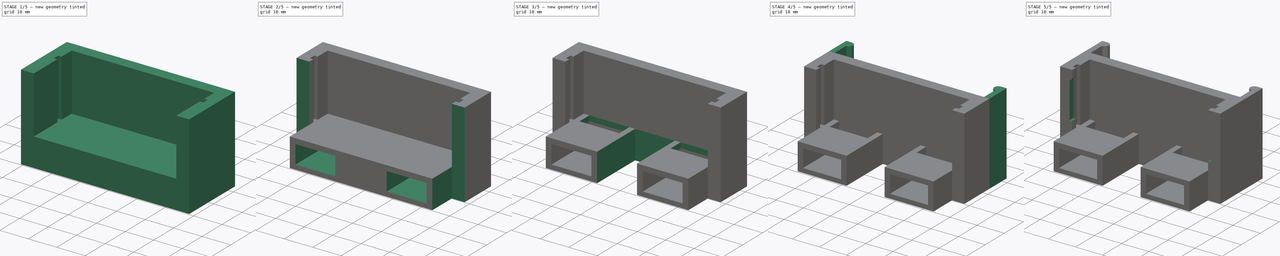
[diagram: build sequence overview — one tinted view per stage of 5, left to right]
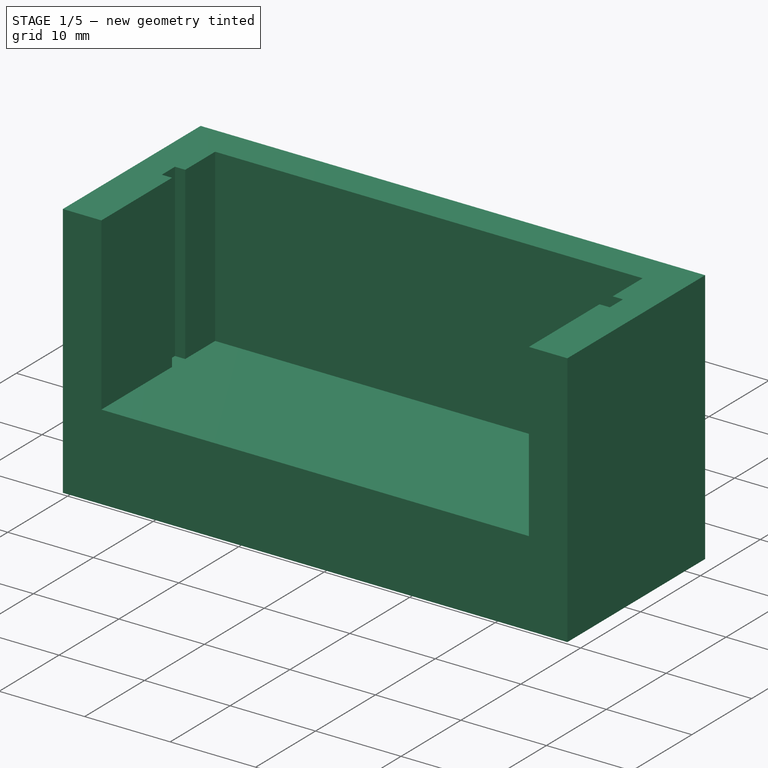
[diagram: stage 1 of 5 — iso view after this stage's code; geometry added in this stage tinted green]
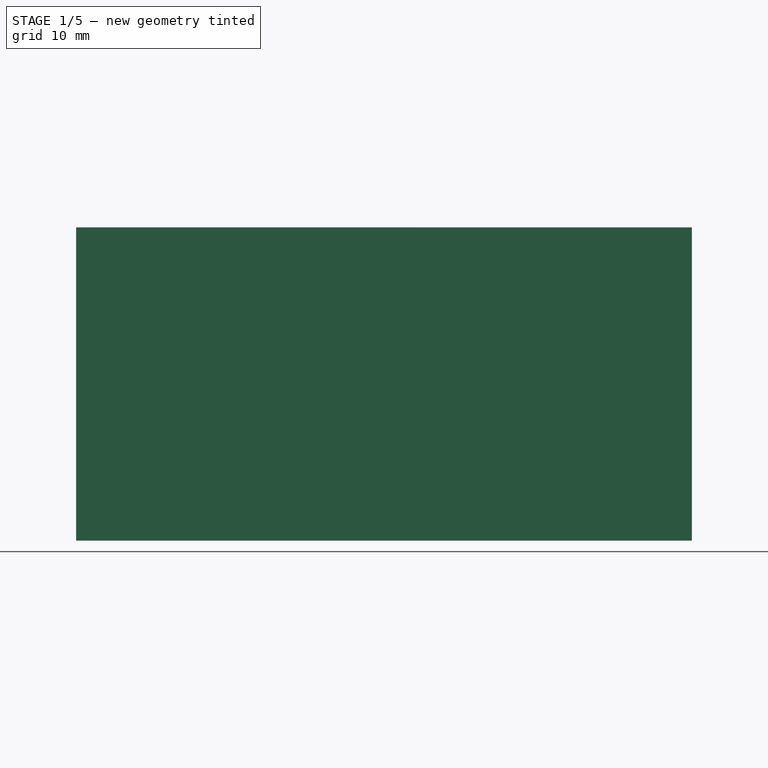
[diagram: stage 1 of 5 — front view after this stage's code; geometry added in this stage tinted green]
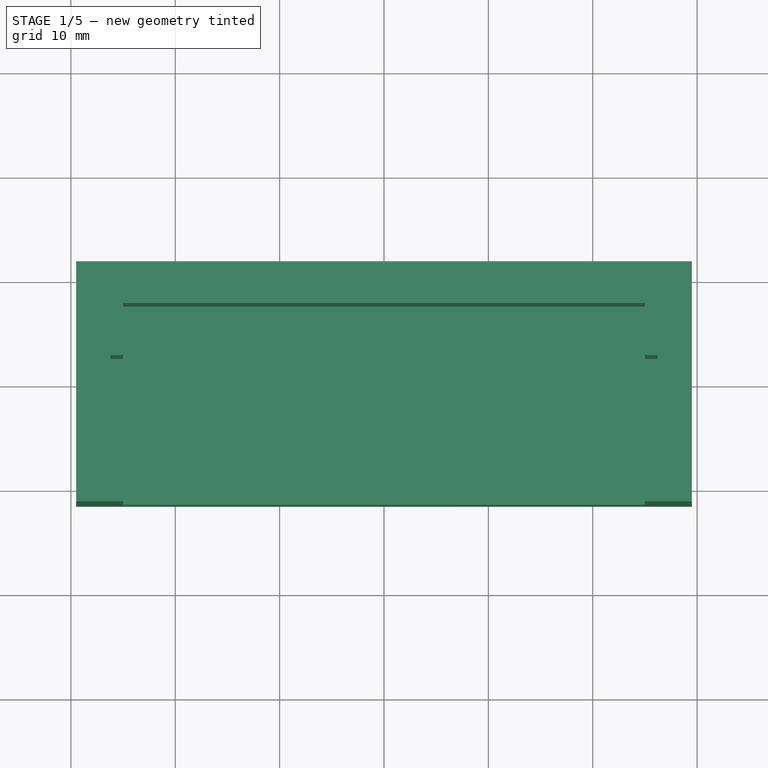
[diagram: stage 1 of 5 — top view after this stage's code; geometry added in this stage tinted green]
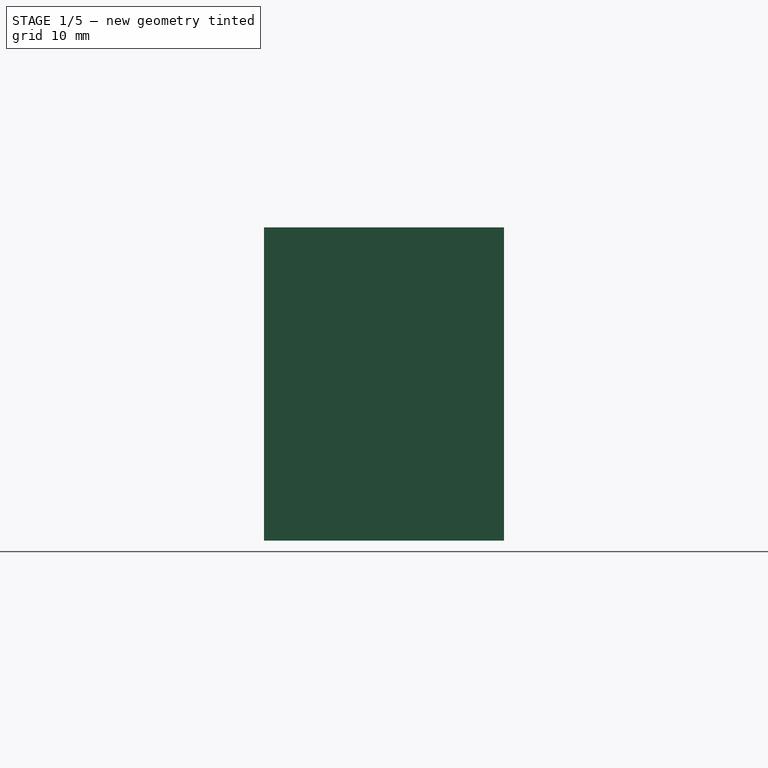
[diagram: stage 1 of 5 — right view after this stage's code; geometry added in this stage tinted green]
FCSTD DOCUMENT  (FreeCAD 0.14R3702 (Git))
Label: test
License: CC-BY 3.0
LicenseURL: http://creativecommons.org/licenses/by/3.0/
objects: Sketcher::SketchObject×10, PartDesign::Pocket×7, PartDesign::Mirrored×7, PartDesign::Pad×3, PartDesign::Draft×2, Part::Feature×1
note: 40 computed .brp shape members not serialized (recipe doc carries the construction recipe); baked Part::Feature solids carry a one-line shape summary decoded from their .brp

FEATURE [Sketcher::SketchObject] Sketch
  sketch-geometry (4):
    g0: LineSegment StartX=-29.5 StartY=11.5 StartZ=0 EndX=29.5 EndY=11.5 EndZ=0
    g1: LineSegment StartX=29.5 StartY=11.5 StartZ=0 EndX=29.5 EndY=-11.5 EndZ=0
    g2: LineSegment StartX=29.5 StartY=-11.5 StartZ=0 EndX=-29.5 EndY=-11.5 EndZ=0
    g3: LineSegment StartX=-29.5 StartY=-11.5 StartZ=0 EndX=-29.5 EndY=11.5 EndZ=0
  constraints (12):
    c: Coincident(g0,g1)
    c: Coincident(g1,g2)
    c: Coincident(g2,g3)
    c: Coincident(g3,g0)
    c: Horizontal(g0)
    c: Horizontal(g2)
    c: Vertical(g1)
    c: Vertical(g3)
    c: DistanceY(g1) = -23
    c: DistanceX(g0) = 59
    c: Symmetric(g0,g0,g-2)
    c: Symmetric(g0,g1,g-1)
FEATURE [PartDesign::Pad] Pad
  Length = 30
  Length2 = 26.5
  Sketch = -> Sketch
  Type = 0
FEATURE [Sketcher::SketchObject] Sketch001
  ExternalGeometry = -> [Pad]
  Placement = pos=(0,0,30) rot=(0,0,1;0rad)
  Support = -> Pad [Face6]
  sketch-geometry (4):
    g0: LineSegment StartX=-25 StartY=7.5 StartZ=0 EndX=25 EndY=7.5 EndZ=0
    g1: LineSegment StartX=25 StartY=7.5 StartZ=0 EndX=25 EndY=-11.5 EndZ=0
    g2: LineSegment StartX=25 StartY=-11.5 StartZ=0 EndX=-25 EndY=-11.5 EndZ=0
    g3: LineSegment StartX=-25 StartY=-11.5 StartZ=0 EndX=-25 EndY=7.5 EndZ=0
  constraints (12):
    c: Coincident(g0,g1)
    c: Coincident(g1,g2)
    c: Coincident(g2,g3)
    c: Coincident(g3,g0)
    c: Horizontal(g0)
    c: Horizontal(g2)
    c: Vertical(g1)
    c: Vertical(g3)
    c: DistanceY(g0,g-3) = 4
    c: DistanceY(g-4,g1) = 0
    c: Symmetric(g1,g2,g-2)
    c: DistanceX(g0) = 50
FEATURE [PartDesign::Pocket] Pocket
  Length = 20
  Sketch = -> Sketch001
  Type = 0
FEATURE [Sketcher::SketchObject] Sketch002
  Placement = pos=(0,0,30) rot=(0,0,1;0rad)
  Support = -> Pocket [Face5]
  sketch-geometry (4):
    g0: LineSegment StartX=25 StartY=2.5 StartZ=0 EndX=26.2 EndY=2.5 EndZ=0
    g1: LineSegment StartX=26.2 StartY=2.5 StartZ=0 EndX=26.2 EndY=0.3 EndZ=0
    g2: LineSegment StartX=26.2 StartY=0.3 StartZ=0 EndX=25 EndY=0.3 EndZ=0
    g3: LineSegment StartX=25 StartY=0.3 StartZ=0 EndX=25 EndY=2.5 EndZ=0
  constraints (10):
    c: Coincident(g0,g1)
    c: Coincident(g1,g2)
    c: Coincident(g2,g3)
    c: Coincident(g3,g0)
    c: Horizontal(g0)
    c: Horizontal(g2)
    c: Vertical(g1)
    c: Vertical(g3)
    c: DistanceX(g0) = 1.2
    c: DistanceY(g1) = -2.2
FEATURE [PartDesign::Pocket] Pocket001
  Length = 20
  Sketch = -> Sketch002
  Type = 0
FEATURE [PartDesign::Mirrored] Mirrored
  MirrorPlane = -> Sketch002 [V_Axis]
  Originals = -> [Pocket001]
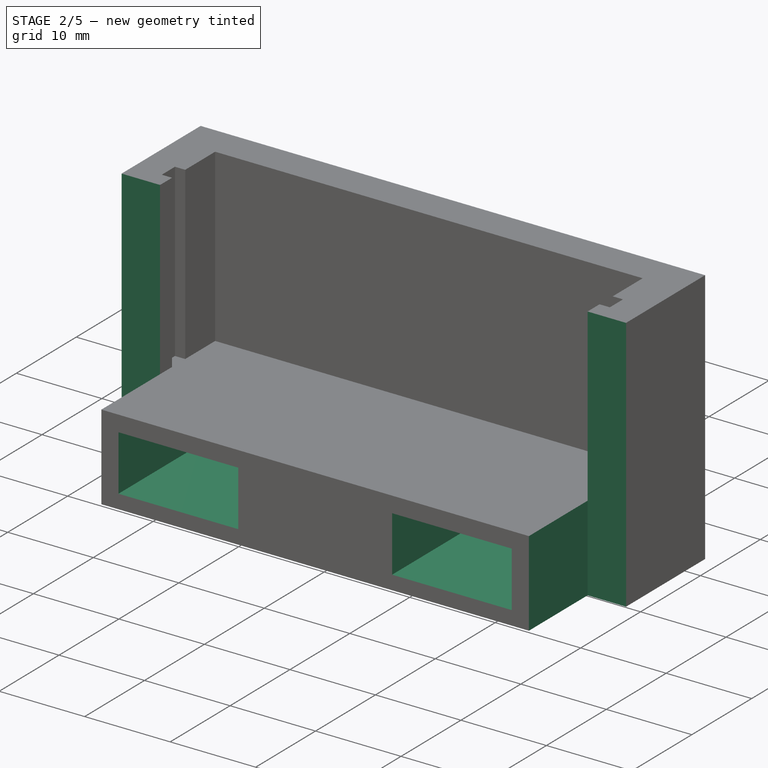
[diagram: stage 2 of 5 — iso view after this stage's code; geometry added in this stage tinted green]
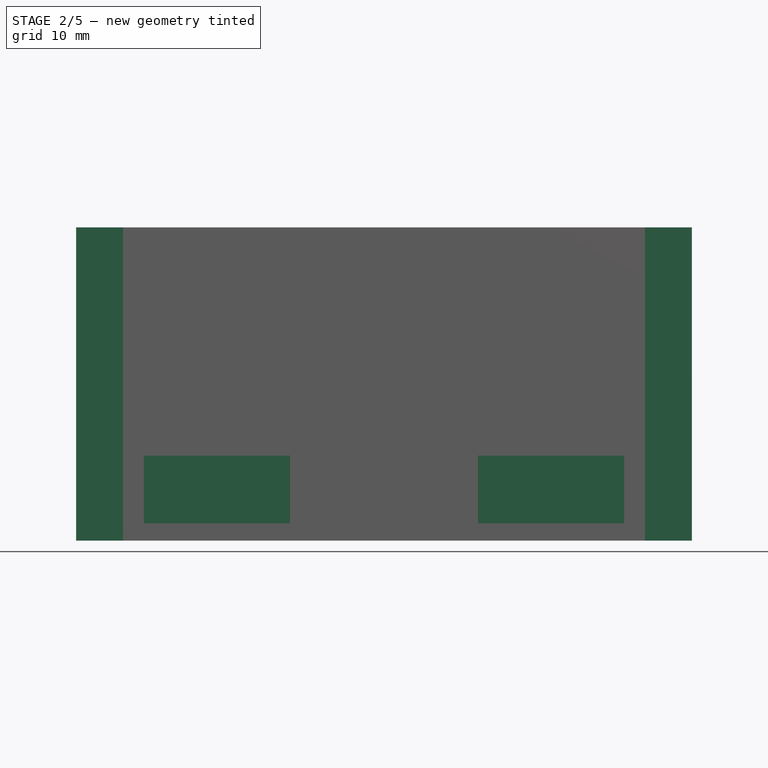
[diagram: stage 2 of 5 — front view after this stage's code; geometry added in this stage tinted green]
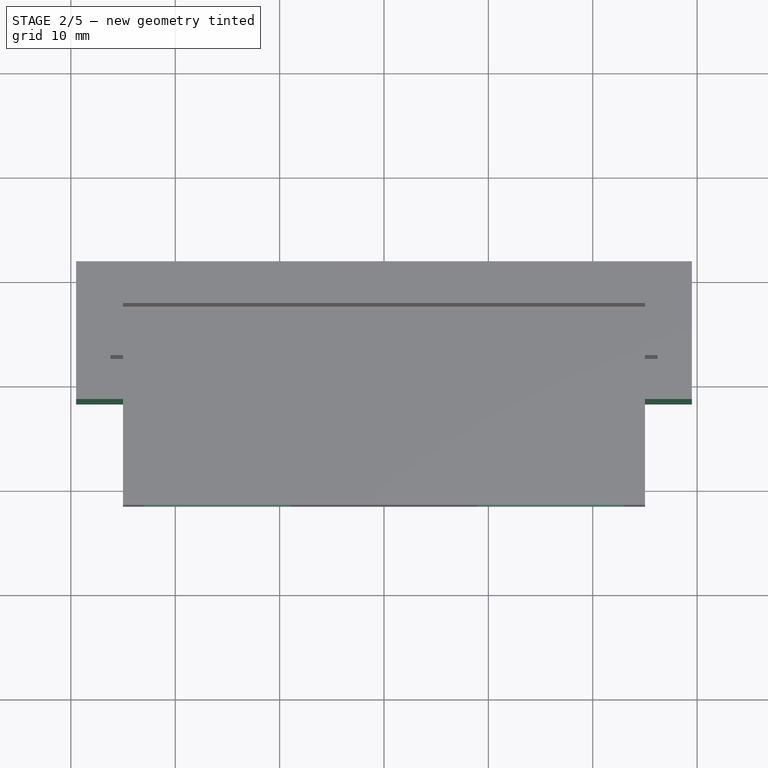
[diagram: stage 2 of 5 — top view after this stage's code; geometry added in this stage tinted green]
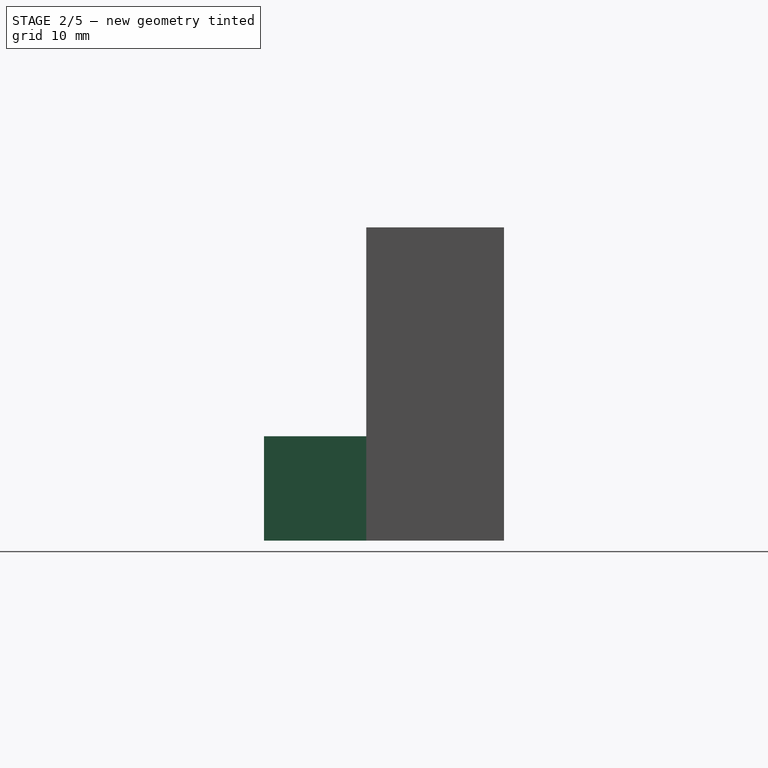
[diagram: stage 2 of 5 — right view after this stage's code; geometry added in this stage tinted green]
FEATURE [Sketcher::SketchObject] Sketch003
  ExternalGeometry = -> [Mirrored]
  Placement = pos=(0,0,30) rot=(0,0,1;0rad)
  Support = -> Mirrored [Face5]
  sketch-geometry (4):
    g0: LineSegment StartX=25 StartY=-1.7 StartZ=0 EndX=29.5 EndY=-1.7 EndZ=0
    g1: LineSegment StartX=29.5 StartY=-1.7 StartZ=0 EndX=29.5 EndY=-11.5 EndZ=0
    g2: LineSegment StartX=29.5 StartY=-11.5 StartZ=0 EndX=25 EndY=-11.5 EndZ=0
    g3: LineSegment StartX=25 StartY=-11.5 StartZ=0 EndX=25 EndY=-1.7 EndZ=0
  constraints (11):
    c: Coincident(g0,g1)
    c: Coincident(g1,g2)
    c: Coincident(g2,g3)
    c: Coincident(g3,g0)
    c: Horizontal(g0)
    c: Horizontal(g2)
    c: Vertical(g1)
    c: Vertical(g3)
    c: Coincident(g-3,g1)
    c: Coincident(g2,g-4)
    c: DistanceY(g-5,g0) = -2
FEATURE [PartDesign::Pocket] Pocket002
  Length = 5
  Sketch = -> Sketch003
  Type = 2
FEATURE [PartDesign::Mirrored] Mirrored001
  MirrorPlane = -> Sketch003 [V_Axis]
  Originals = -> [Pocket002]
FEATURE [Sketcher::SketchObject] Sketch004
  ExternalGeometry = -> [Mirrored001]
  Placement = pos=(0,-11.5,0) rot=(1,0,0;1.5708rad)
  Support = -> Mirrored001 [Face9]
  sketch-geometry (4):
    g0: LineSegment StartX=9 StartY=8.14247 StartZ=0 EndX=23 EndY=8.14247 EndZ=0
    g1: LineSegment StartX=23 StartY=8.14247 StartZ=0 EndX=23 EndY=1.64247 EndZ=0
    g2: LineSegment StartX=23 StartY=1.64247 StartZ=0 EndX=9 EndY=1.64247 EndZ=0
    g3: LineSegment StartX=9 StartY=1.64247 StartZ=0 EndX=9 EndY=8.14247 EndZ=0
  constraints (11):
    c: Coincident(g0,g1)
    c: Coincident(g1,g2)
    c: Coincident(g2,g3)
    c: Coincident(g3,g0)
    c: Horizontal(g0)
    c: Horizontal(g2)
    c: Vertical(g1)
    c: Vertical(g3)
    c: DistanceX(g0) = 14
    c: DistanceY(g1) = -6.5
    c: DistanceX(g1,g-3) = 2
FEATURE [PartDesign::Pocket] Pocket003
  Length = 19
  Sketch = -> Sketch004
  Type = 0
FEATURE [PartDesign::Mirrored] Mirrored002
  MirrorPlane = -> Sketch004 [V_Axis]
  Originals = -> [Pocket003]
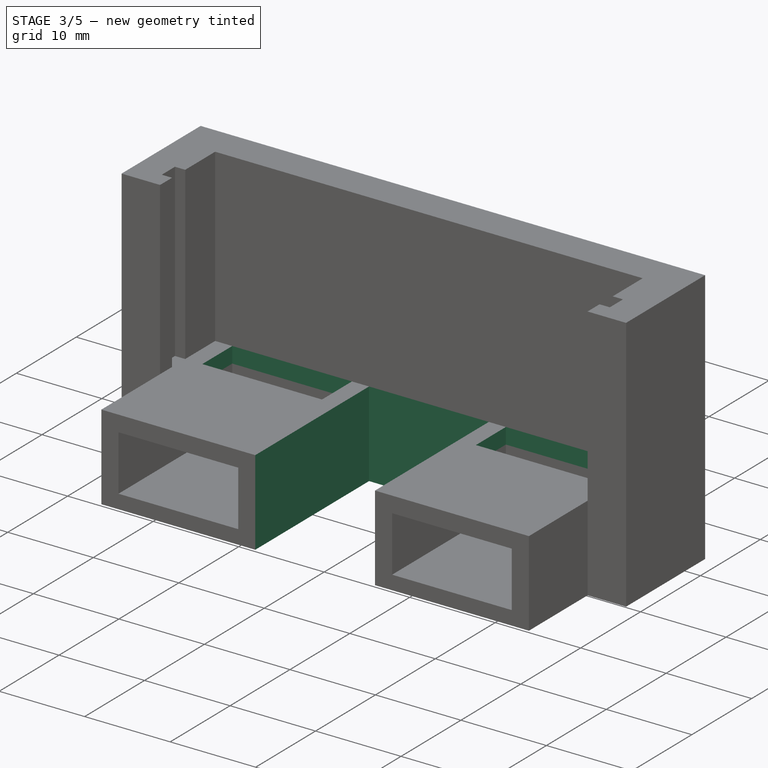
[diagram: stage 3 of 5 — iso view after this stage's code; geometry added in this stage tinted green]
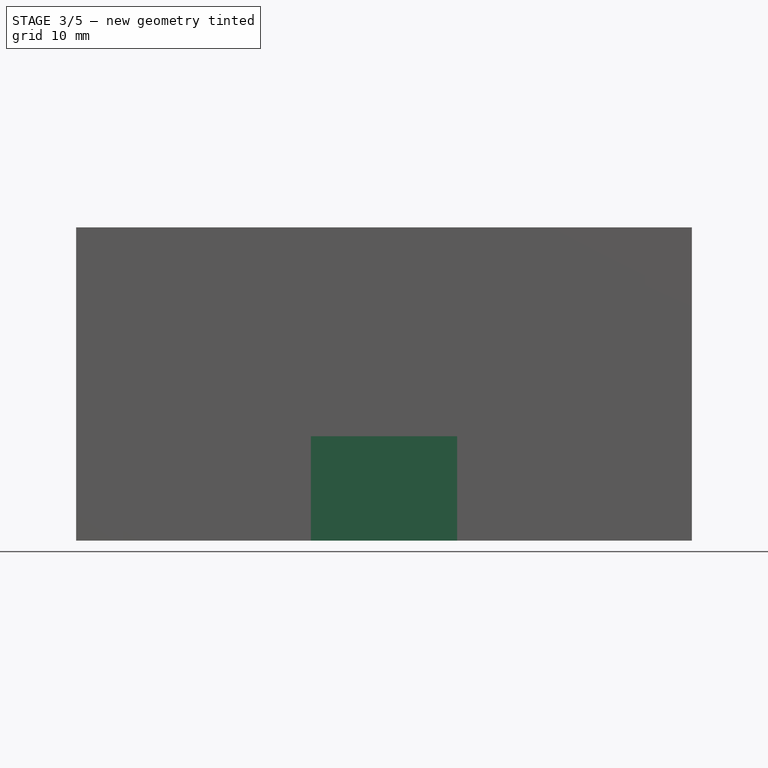
[diagram: stage 3 of 5 — front view after this stage's code; geometry added in this stage tinted green]
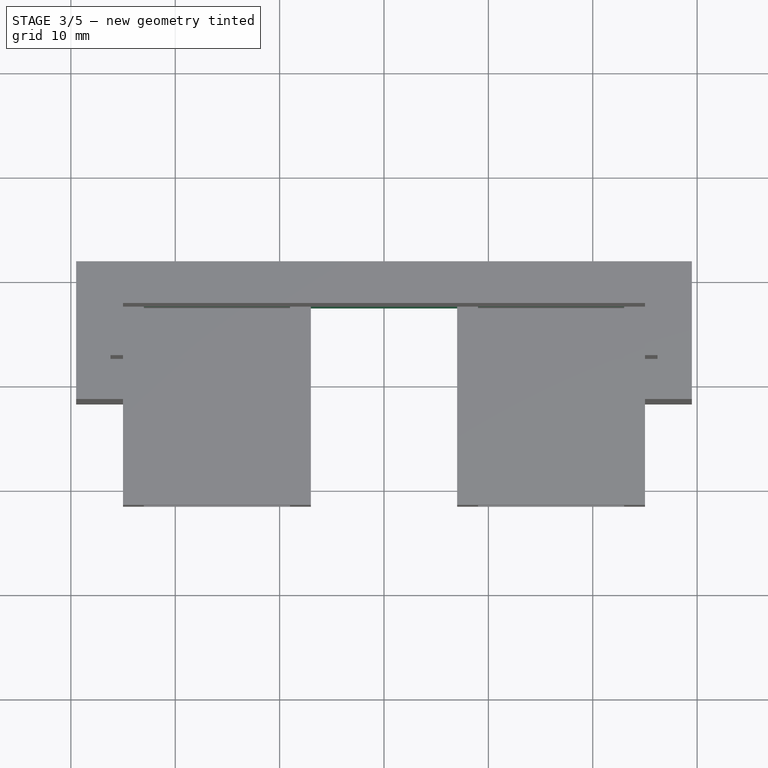
[diagram: stage 3 of 5 — top view after this stage's code; geometry added in this stage tinted green]
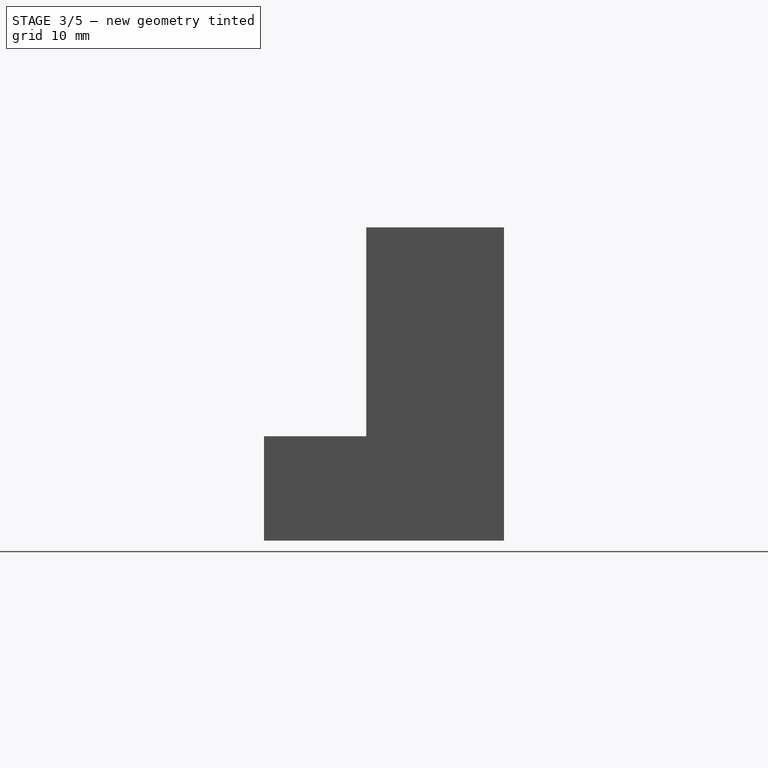
[diagram: stage 3 of 5 — right view after this stage's code; geometry added in this stage tinted green]
FEATURE [Sketcher::SketchObject] Sketch005
  ExternalGeometry = -> [Mirrored002]
  Placement = pos=(0,-11.5,0) rot=(1,0,0;1.5708rad)
  Support = -> Mirrored002 [Face9]
  sketch-geometry (4):
    g0: LineSegment StartX=-7 StartY=0 StartZ=0 EndX=7 EndY=0 EndZ=0
    g1: LineSegment StartX=7 StartY=0 StartZ=0 EndX=7 EndY=10 EndZ=0
    g2: LineSegment StartX=7 StartY=10 StartZ=0 EndX=-7 EndY=10 EndZ=0
    g3: LineSegment StartX=-7 StartY=10 StartZ=0 EndX=-7 EndY=0 EndZ=0
  constraints (12):
    c: Coincident(g0,g1)
    c: Coincident(g1,g2)
    c: Coincident(g2,g3)
    c: Coincident(g3,g0)
    c: Horizontal(g0)
    c: Horizontal(g2)
    c: Vertical(g1)
    c: Vertical(g3)
    c: DistanceX(g2,g-4) = -2
    c: DistanceX(g0,g-3) = 2
    c: DistanceY(g0) = 0
    c: DistanceY(g2,g-6) = 0
FEATURE [PartDesign::Pocket] Pocket004
  Length = 19
  Sketch = -> Sketch005
  Type = 0
FEATURE [Sketcher::SketchObject] Sketch006
  ExternalGeometry = -> [Pocket004]
  Placement = pos=(0,0,10) rot=(0,0,1;0rad)
  Support = -> Pocket004 [Face26]
  sketch-geometry (4):
    g0: LineSegment StartX=9 StartY=7.5 StartZ=0 EndX=23 EndY=7.5 EndZ=0
    g1: LineSegment StartX=23 StartY=7.5 StartZ=0 EndX=23 EndY=2.5 EndZ=0
    g2: LineSegment StartX=23 StartY=2.5 StartZ=0 EndX=9 EndY=2.5 EndZ=0
    g3: LineSegment StartX=9 StartY=2.5 StartZ=0 EndX=9 EndY=7.5 EndZ=0
  constraints (12):
    c: Coincident(g0,g1)
    c: Coincident(g1,g2)
    c: Coincident(g2,g3)
    c: Coincident(g3,g0)
    c: Horizontal(g0)
    c: Horizontal(g2)
    c: Vertical(g1)
    c: Vertical(g3)
    c: DistanceX(g-3,g2) = 0
    c: DistanceX(g1,g-3) = 0
    c: DistanceY(g0,g-4) = 0
    c: DistanceY(g1,g-4) = 0
FEATURE [PartDesign::Pocket] Pocket005
  Length = 5
  Sketch = -> Sketch006
  Type = 2
FEATURE [PartDesign::Mirrored] Mirrored003
  MirrorPlane = -> Sketch006 [V_Axis]
  Originals = -> [Pocket005]
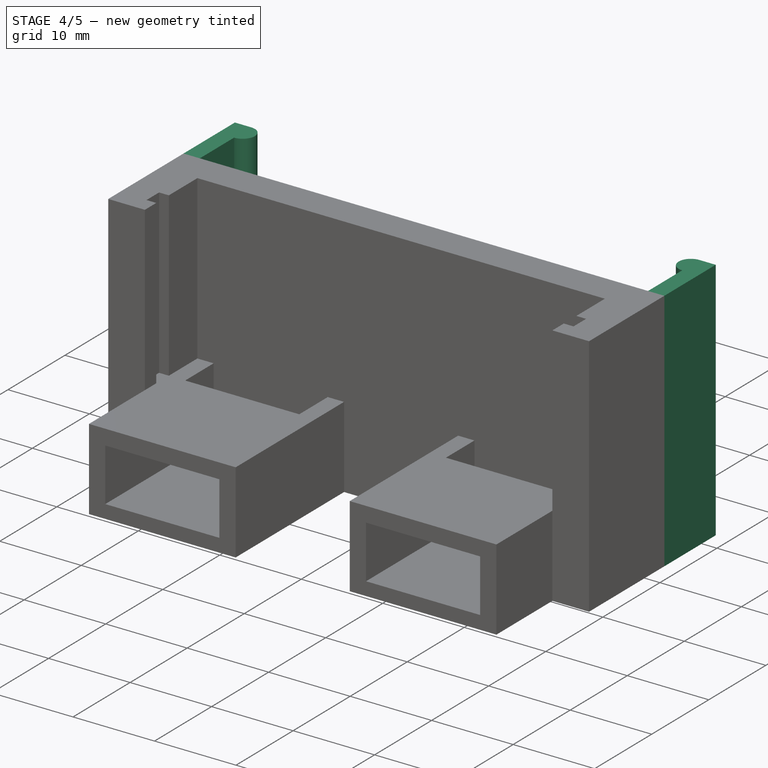
[diagram: stage 4 of 5 — iso view after this stage's code; geometry added in this stage tinted green]
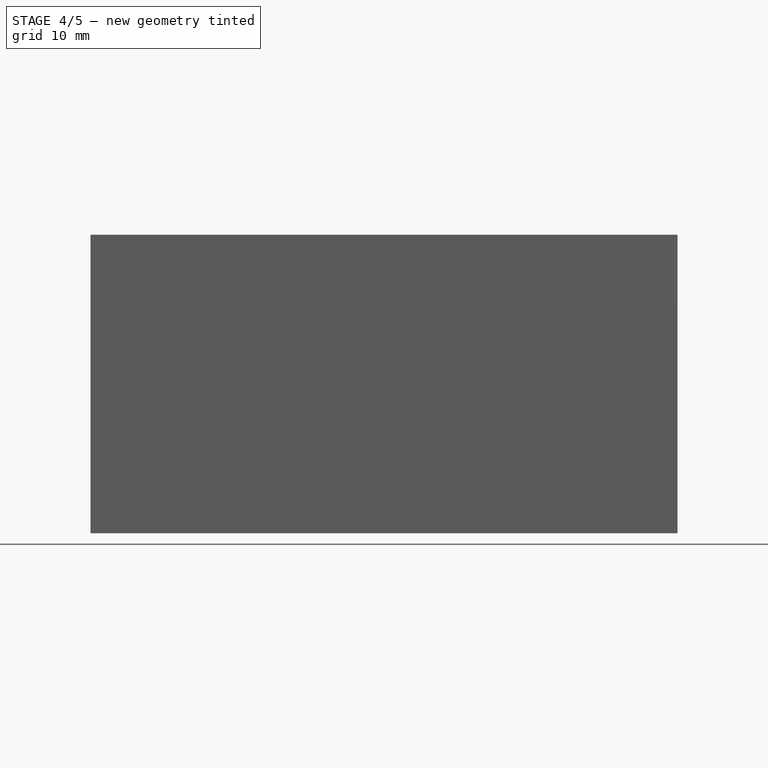
[diagram: stage 4 of 5 — front view after this stage's code; geometry added in this stage tinted green]
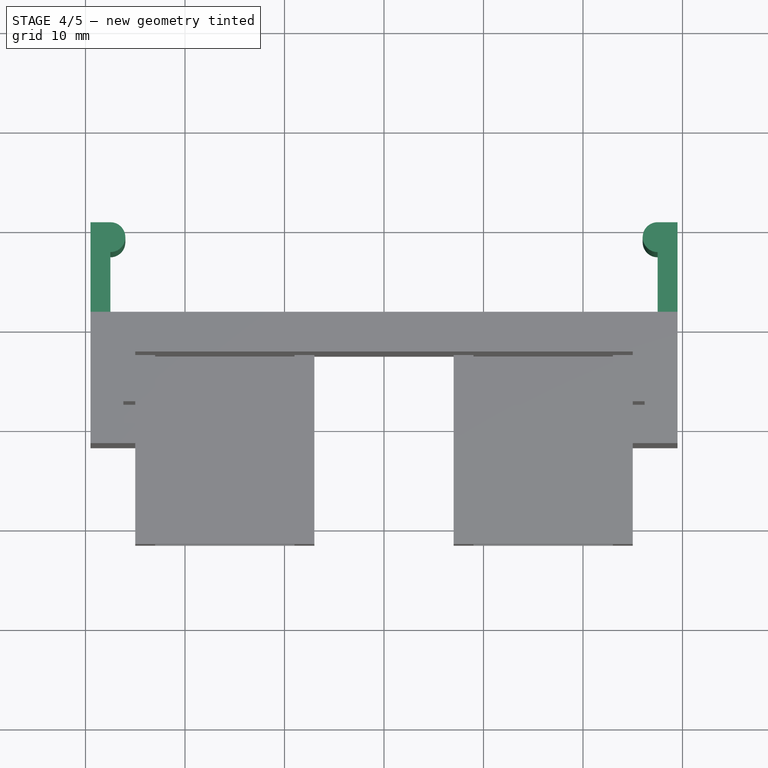
[diagram: stage 4 of 5 — top view after this stage's code; geometry added in this stage tinted green]
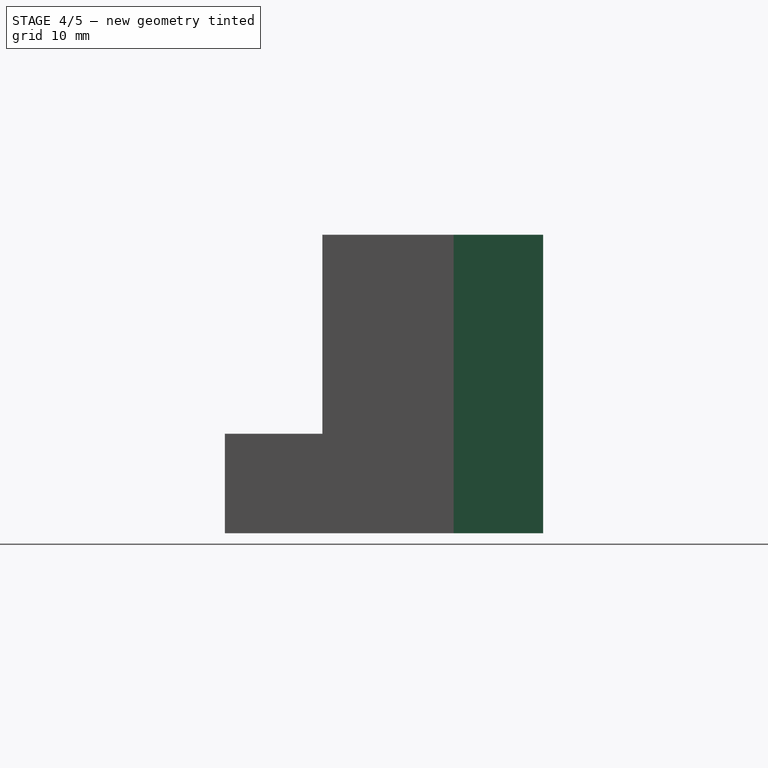
[diagram: stage 4 of 5 — right view after this stage's code; geometry added in this stage tinted green]
FEATURE [Sketcher::SketchObject] Sketch007
  ExternalGeometry = -> [Mirrored003]
  Placement = pos=(0,11.5,0) rot=(0,0.707107,0.707107;3.14159rad)
  Support = -> Mirrored003 [Face1]
  sketch-geometry (4):
    g0: LineSegment StartX=-29.5 StartY=30 StartZ=0 EndX=-27.5 EndY=30 EndZ=0
    g1: LineSegment StartX=-27.5 StartY=30 StartZ=0 EndX=-27.5 EndY=0 EndZ=0
    g2: LineSegment StartX=-27.5 StartY=0 StartZ=0 EndX=-29.5 EndY=0 EndZ=0
    g3: LineSegment StartX=-29.5 StartY=0 StartZ=0 EndX=-29.5 EndY=30 EndZ=0
  constraints (11):
    c: Coincident(g0,g1)
    c: Coincident(g1,g2)
    c: Coincident(g2,g3)
    c: Coincident(g3,g0)
    c: Horizontal(g0)
    c: Horizontal(g2)
    c: Vertical(g1)
    c: Vertical(g3)
    c: Coincident(g0,g-3)
    c: Coincident(g2,g-4)
    c: DistanceX(g0) = 2
FEATURE [PartDesign::Pad] Pad001
  Length = 9
  Length2 = 26.5
  Sketch = -> Sketch007
  Type = 0
FEATURE [PartDesign::Mirrored] Mirrored004
  MirrorPlane = -> Sketch007 [V_Axis]
  Originals = -> [Pad001]
FEATURE [Sketcher::SketchObject] Sketch008
  ExternalGeometry = -> [Mirrored004]
  Placement = pos=(0,0,30) rot=(0,0,1;0rad)
  Support = -> Mirrored004 [Face2]
  sketch-geometry (1):
    g0: Circle CenterX=27.5 CenterY=19 CenterZ=0 NormalX=0 NormalY=0 NormalZ=1 Radius=1.5
  constraints (3):
    c: Radius(g0) = 1.5
    c: DistanceX(g0,g-3) = 0
    c: DistanceY(g-3,g0) = -1.5
FEATURE [PartDesign::Pad] Pad002
  Length = 30
  Length2 = 26.5
  Reversed = true
  Sketch = -> Sketch008
  Type = 0
FEATURE [PartDesign::Mirrored] Mirrored005
  MirrorPlane = -> Sketch008 [V_Axis]
  Originals = -> [Pad002]
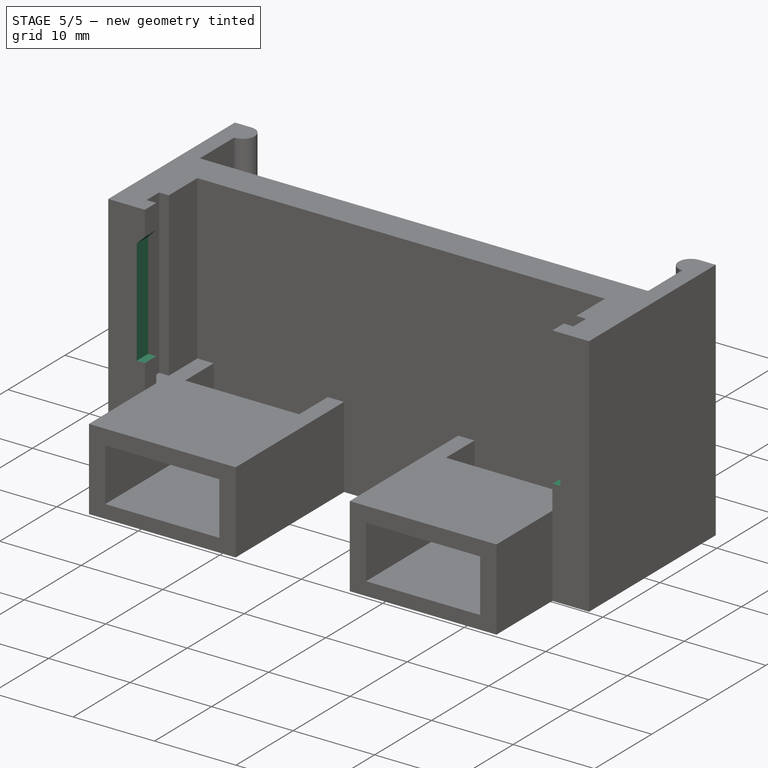
[diagram: stage 5 of 5 — iso view after this stage's code; geometry added in this stage tinted green]
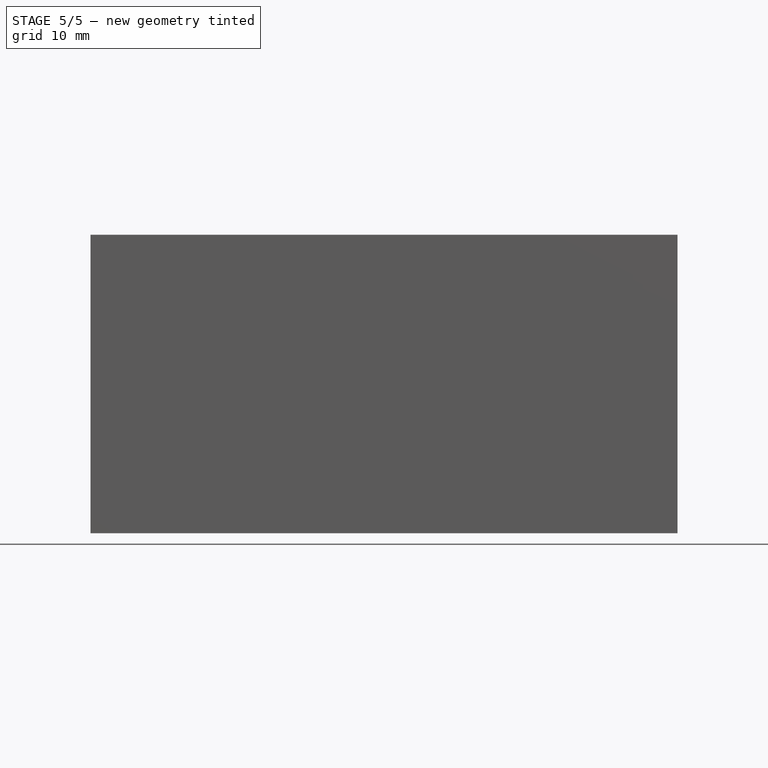
[diagram: stage 5 of 5 — front view after this stage's code; geometry added in this stage tinted green]
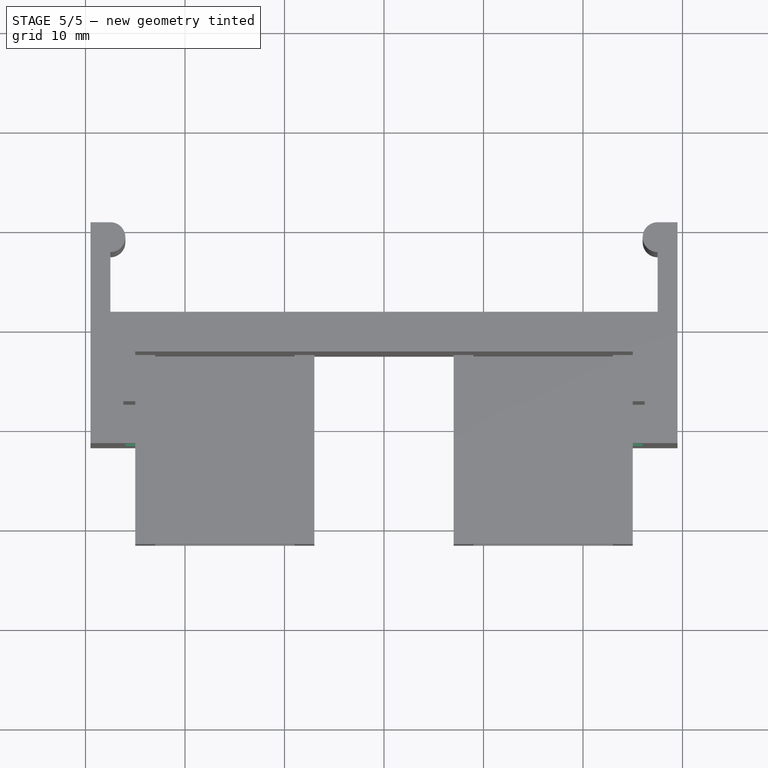
[diagram: stage 5 of 5 — top view after this stage's code; geometry added in this stage tinted green]
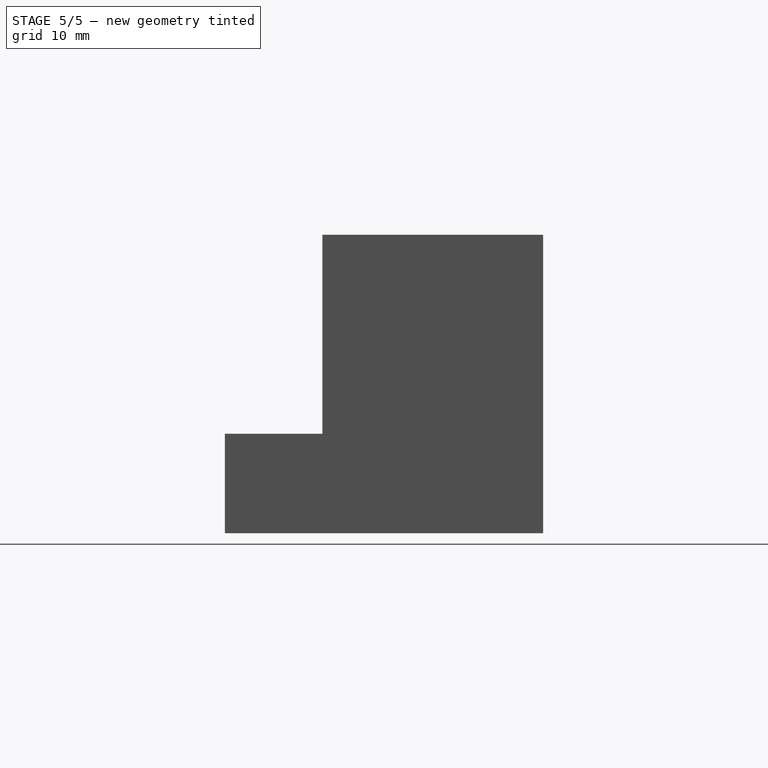
[diagram: stage 5 of 5 — right view after this stage's code; geometry added in this stage tinted green]
FEATURE [Sketcher::SketchObject] Sketch009
  ExternalGeometry = -> [Mirrored005]
  Placement = pos=(0,-1.7,0) rot=(1,0,0;1.5708rad)
  Support = -> Mirrored005 [Face9]
  sketch-geometry (4):
    g0: LineSegment StartX=25 StartY=27 StartZ=0 EndX=26 EndY=27 EndZ=0
    g1: LineSegment StartX=26 StartY=27 StartZ=0 EndX=26 EndY=13 EndZ=0
    g2: LineSegment StartX=26 StartY=13 StartZ=0 EndX=25 EndY=13 EndZ=0
    g3: LineSegment StartX=25 StartY=13 StartZ=0 EndX=25 EndY=27 EndZ=0
  constraints (12):
    c: Coincident(g0,g1)
    c: Coincident(g1,g2)
    c: Coincident(g2,g3)
    c: Coincident(g3,g0)
    c: Horizontal(g0)
    c: Horizontal(g2)
    c: Vertical(g1)
    c: Vertical(g3)
    c: DistanceX(g0) = 1
    c: DistanceX(g0,g-3) = 0
    c: DistanceY(g-4,g2) = 3
    c: DistanceY(g0,g-3) = 3
FEATURE [PartDesign::Pocket] Pocket006
  Length = 5
  Sketch = -> Sketch009
  Type = 2
FEATURE [PartDesign::Mirrored] Mirrored006
  MirrorPlane = -> Sketch009 [V_Axis]
  Originals = -> [Pocket006]
FEATURE [PartDesign::Draft] Draft
  Angle = 45
  Base = -> Mirrored006 [Face28]
  NeutralPlane = -> Mirrored006 [Face29]
FEATURE [PartDesign::Draft] Draft001
  Angle = 45
  Base = -> Draft [Face49]
  NeutralPlane = -> Draft [Face31]
FEATURE [Part::Feature] Draft001001  label="Draft002"
  shape: bbox 59 x 32 x 30 mm, 50 faces (baked)
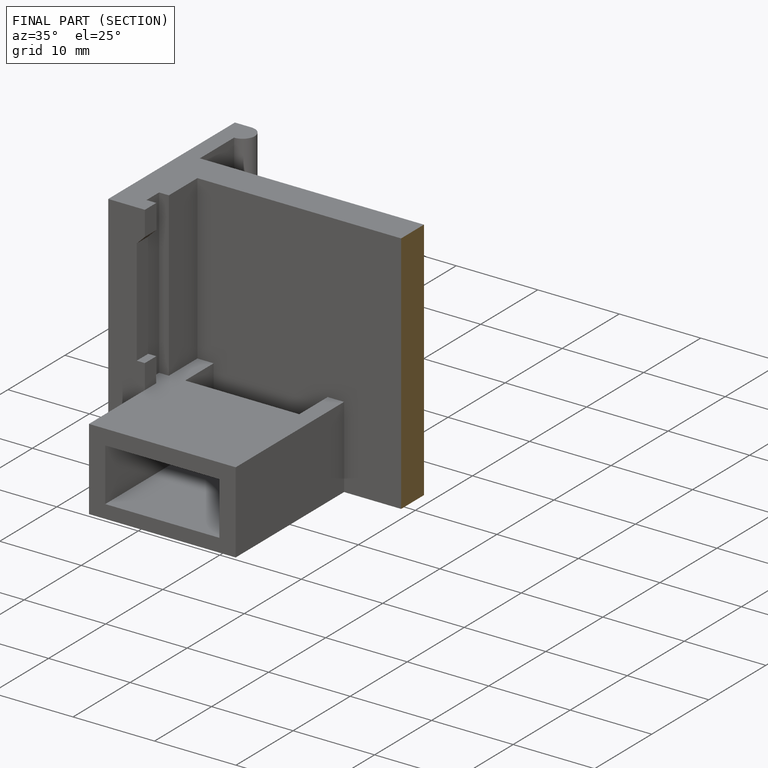
[diagram: finished part — half-section view (interior)]
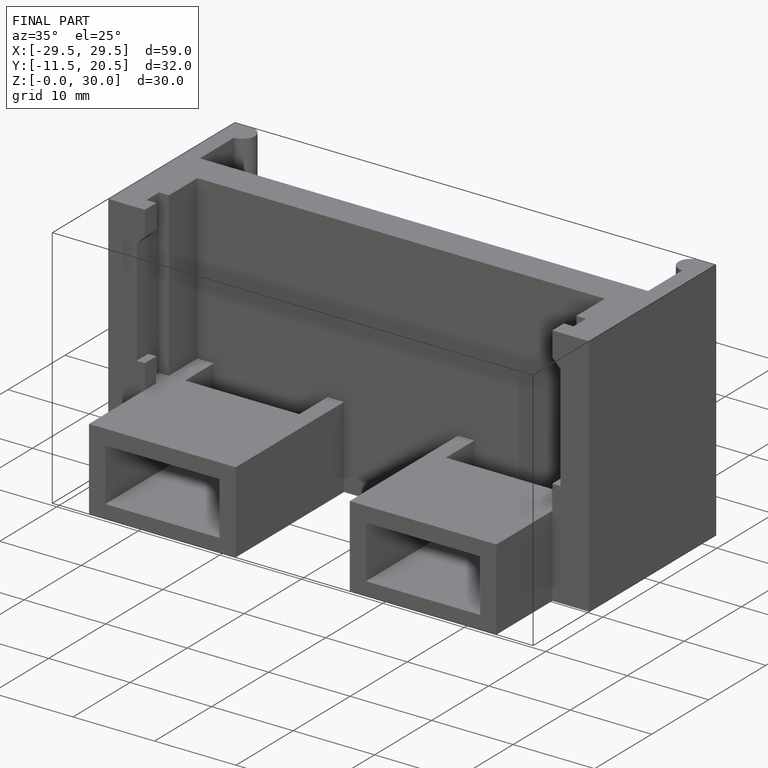
[diagram: finished part — iso view with bounding-box wireframe]
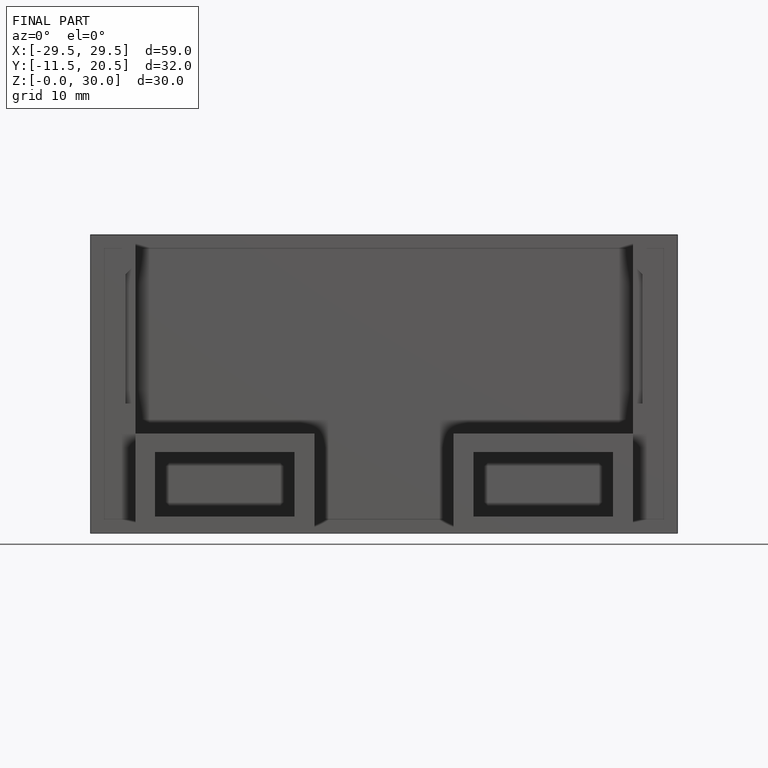
[diagram: finished part — front view with bounding-box wireframe]
